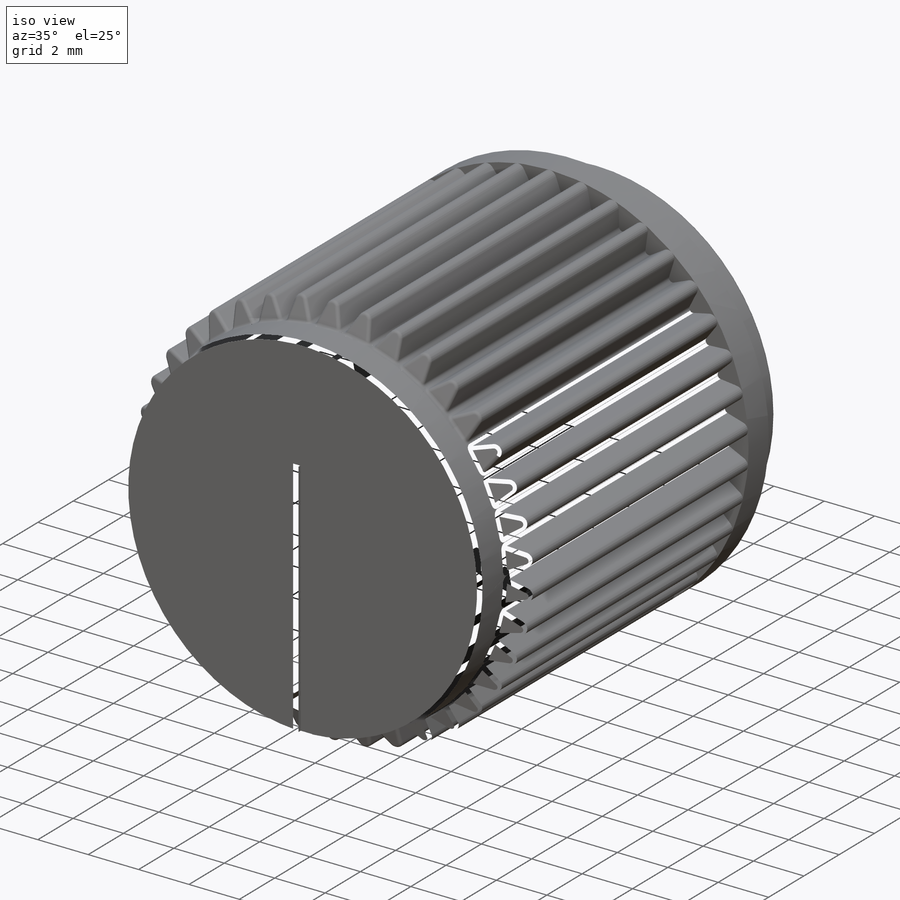
[diagram: iso view]
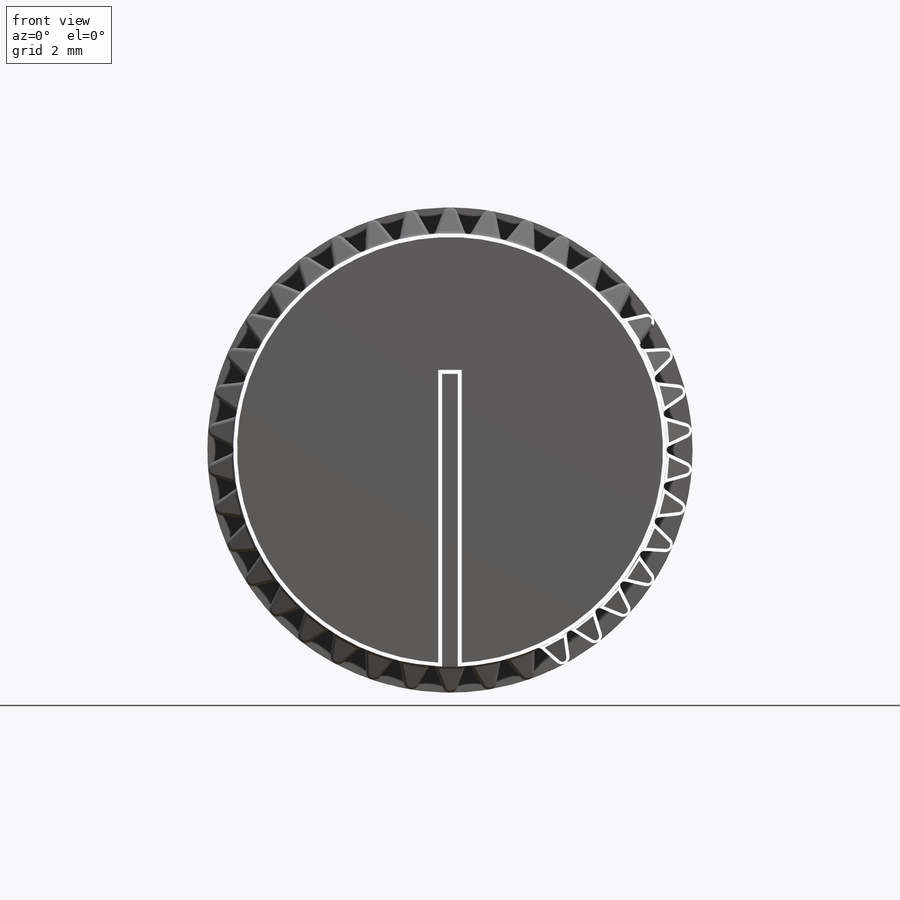
[diagram: front view]
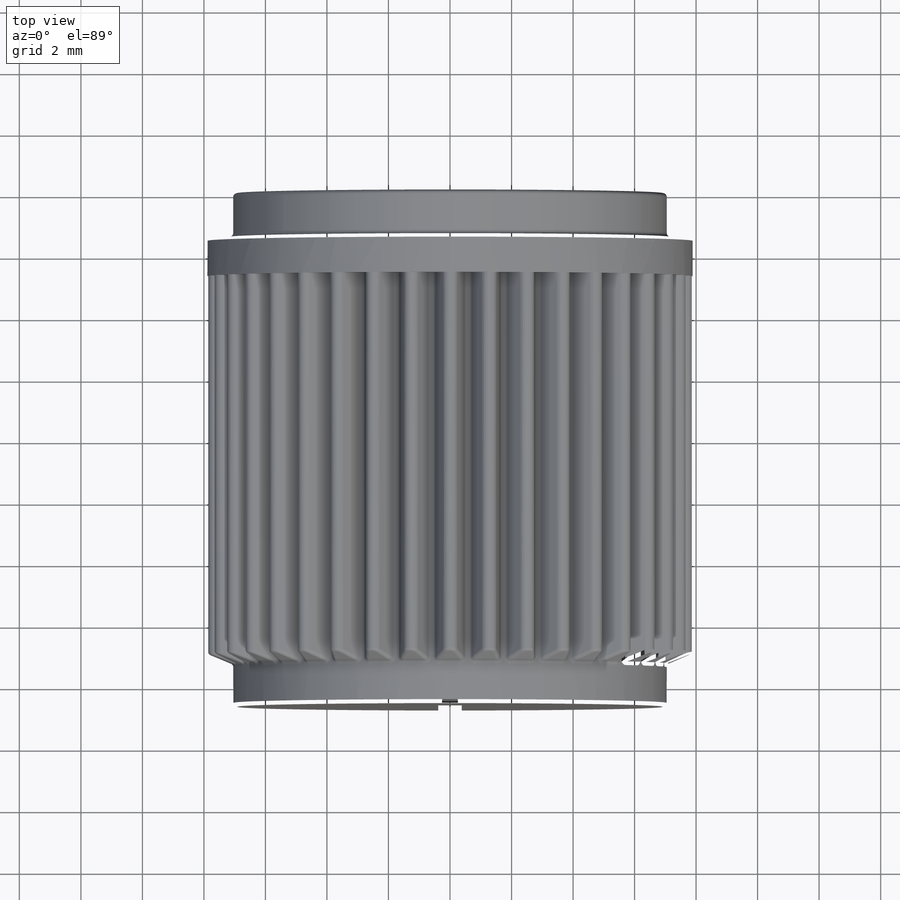
[diagram: top view]
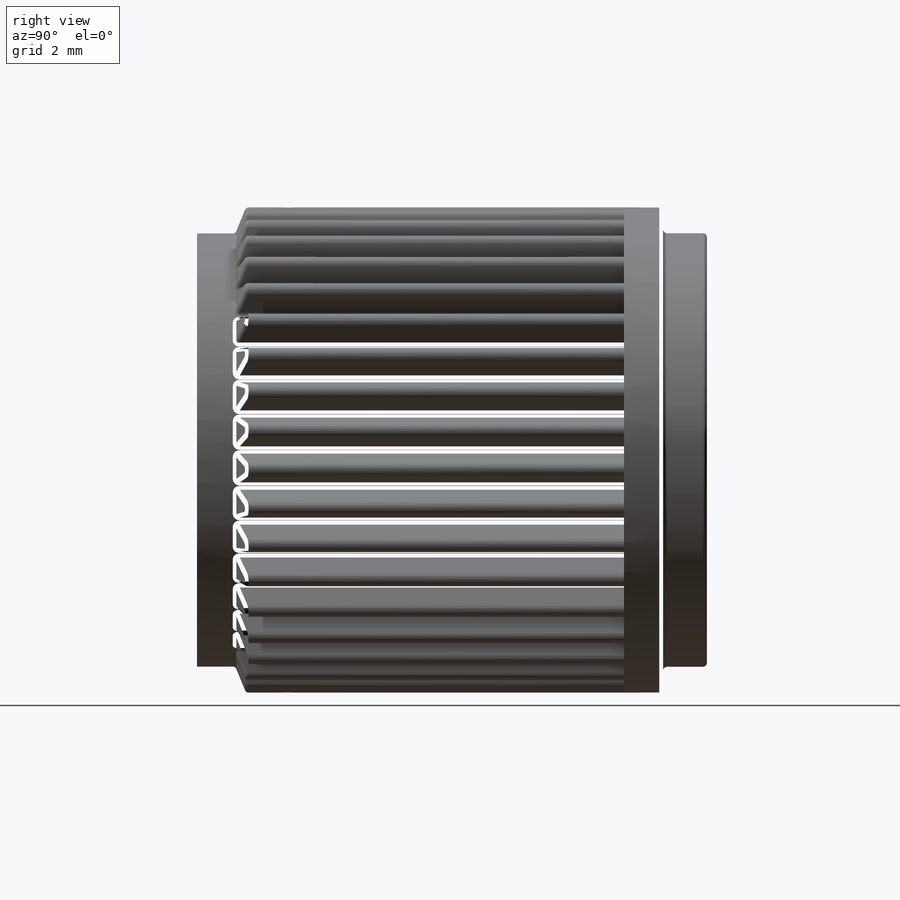
[diagram: right view]
SOLIDWORKS PART (.sldprt)
format: sldprt  version: not decoded by parser v0  size: 1,961,984 bytes
history: native  units: mm
features: sketch x4, fillet x4, extrude x3, material x1, plane x1, cut_extrude x1, chamfer x1 (+16 scaffold rows collapsed)
feature tree (31):
  scaffold x16  (default folders/planes/origin — collapsed)
  material  "Zinc AC41A Alloy, As Cast"
  sketch  "Sketch1"  dims[D1=14.097mm]
  extrude  "Extrude1"  Depth=16.7005mm
  plane  "Plane1"  Offset=1.4224mm
  sketch  "Sketch2"  dims[D1=15.7734mm]
  extrude  "Extrude2"  Depth=1.27mm
  sketch  "Sketch4"  dims[D1=9.525mm D2=0.254mm D3=0.254mm D4=0.0mm]
  sketch  "Sketch3"  dims[c1.D2=0.254mm c1.D1=0.508mm c2.D2=0.508mm c2.D1=0.0mm]
  extrude  "Extrude4"  Depth=12.2682mm
  cut_extrude  "Extrude5"  Depth=0.254mm
  chamfer  "Chamfer1"  Distance=0.889mm Angle=22.5deg
  fillet  "Fillet3"  Radius=0.127mm
  fillet  "Fillet6"  Radius=0.127mm
  fillet  "Fillet7"  Radius=0.127mm
  fillet  "Fillet8"  Radius=0.127mm
decode coverage: 13 of 13 modeling features carry decoded parameters
note: suppression state not decoded; provenance and decode notes live in map.json
